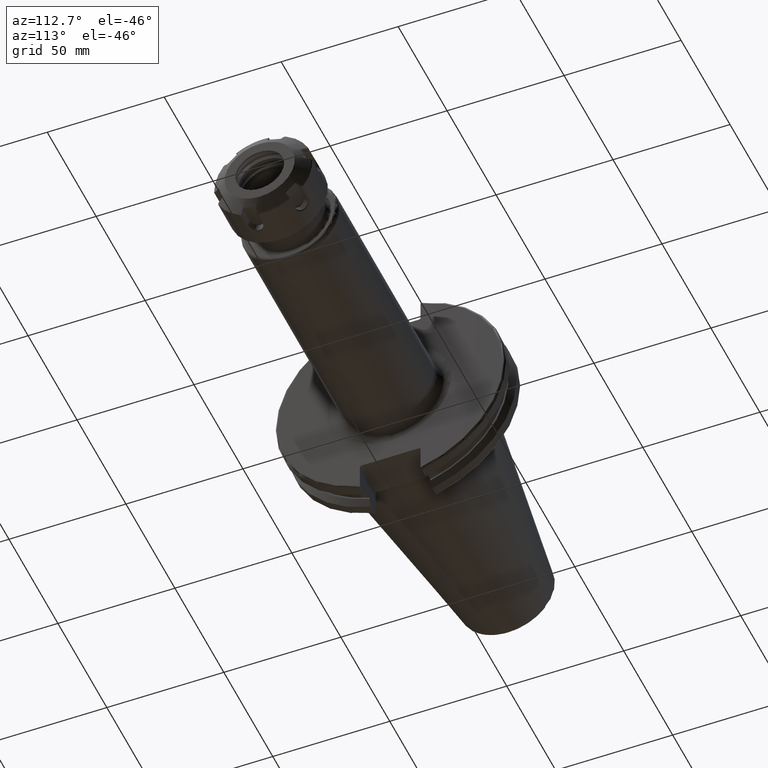
[diagram: clean part render]
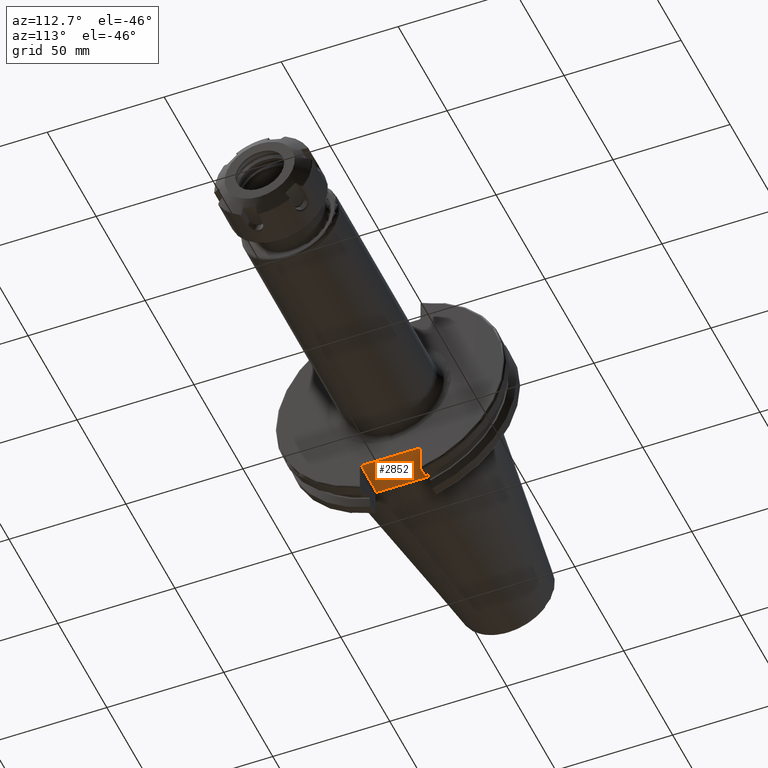
[diagram: same view with one face highlighted and labeled with its STEP entity id]
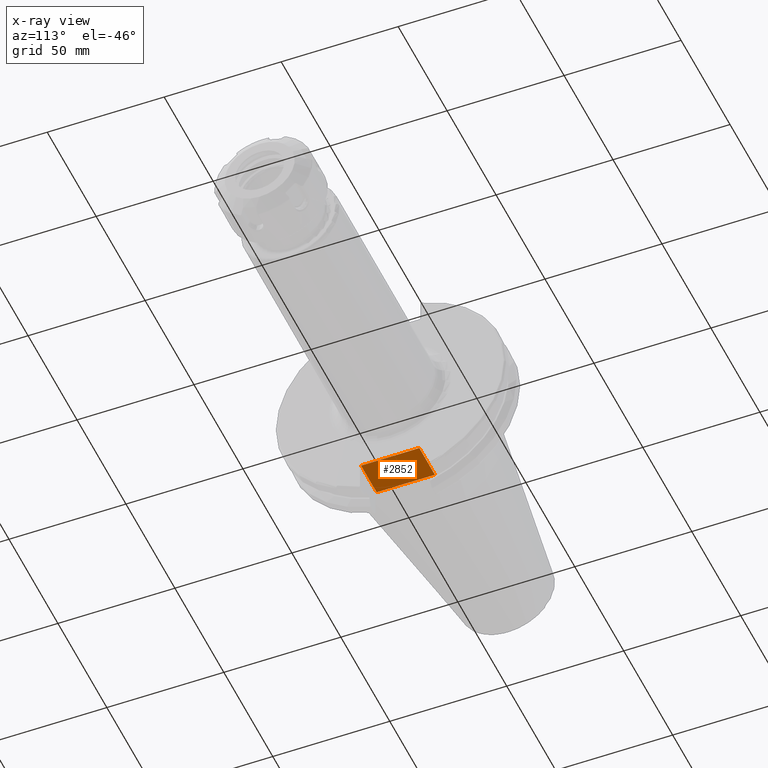
[diagram: x-ray of the same camera — body ghosted, the highlighted face saturated]
A machine part, auxiliary view. The second image highlights one B-rep face of the part: STEP entity #2852.
The next image is the same camera in x-ray: the body ghosted, the highlighted face saturated — about 0% of this face is hidden behind the body in this view.
In plain terms, the highlighted planar face has unit normal (0, 0, 1).
Its self-contained STEP definition (entity closure, byte-faithful):
#99=PLANE('',#3167);
#352=FACE_OUTER_BOUND('',#540,.T.);
#540=EDGE_LOOP('',(#2217,#2218,#2219,#2220));
#670=LINE('',#4347,#856);
#710=LINE('',#4803,#896);
#731=LINE('',#5015,#917);
#732=LINE('',#5017,#918);
#856=VECTOR('',#3433,10.);
#896=VECTOR('',#3605,10.);
#917=VECTOR('',#3684,10.);
#918=VECTOR('',#3687,10.);
#1200=VERTEX_POINT('',#4344);
#1201=VERTEX_POINT('',#4346);
#1276=VERTEX_POINT('',#4800);
#1277=VERTEX_POINT('',#4802);
#1491=EDGE_CURVE('',#1200,#1201,#670,.T.);
#1590=EDGE_CURVE('',#1276,#1277,#710,.T.);
#1645=EDGE_CURVE('',#1201,#1276,#731,.T.);
#1646=EDGE_CURVE('',#1277,#1200,#732,.T.);
#2217=ORIENTED_EDGE('',*,*,#1645,.F.);
#2218=ORIENTED_EDGE('',*,*,#1491,.F.);
#2219=ORIENTED_EDGE('',*,*,#1646,.F.);
#2220=ORIENTED_EDGE('',*,*,#1590,.F.);
#2852=ADVANCED_FACE('',(#352),#99,.F.);
#3167=AXIS2_PLACEMENT_3D('',#5016,#3685,#3686);
#3433=DIRECTION('',(0.,1.,0.));
#3605=DIRECTION('',(0.,-1.,0.));
#3684=DIRECTION('',(-1.,2.63163976207444E-16,0.));
#3685=DIRECTION('center_axis',(0.,0.,1.));
#3686=DIRECTION('ref_axis',(1.,0.,0.));
#3687=DIRECTION('',(1.,2.63163976207445E-16,0.));
#4344=CARTESIAN_POINT('',(19.05,-12.45,-35.306));
#4346=CARTESIAN_POINT('',(19.05,12.45,-35.306));
#4347=CARTESIAN_POINT('',(19.05,-3.33066907387547E-15,-35.306));
#4800=CARTESIAN_POINT('',(3.175,12.45,-35.306));
#4802=CARTESIAN_POINT('',(3.175,-12.45,-35.306));
#4803=CARTESIAN_POINT('',(3.175,24.60625,-35.306));
#5015=CARTESIAN_POINT('',(10.63125,12.45,-35.306));
#5016=CARTESIAN_POINT('Origin',(18.0875,-6.66133814775094E-15,-35.306));
#5017=CARTESIAN_POINT('',(19.06875,-12.45,-35.306));